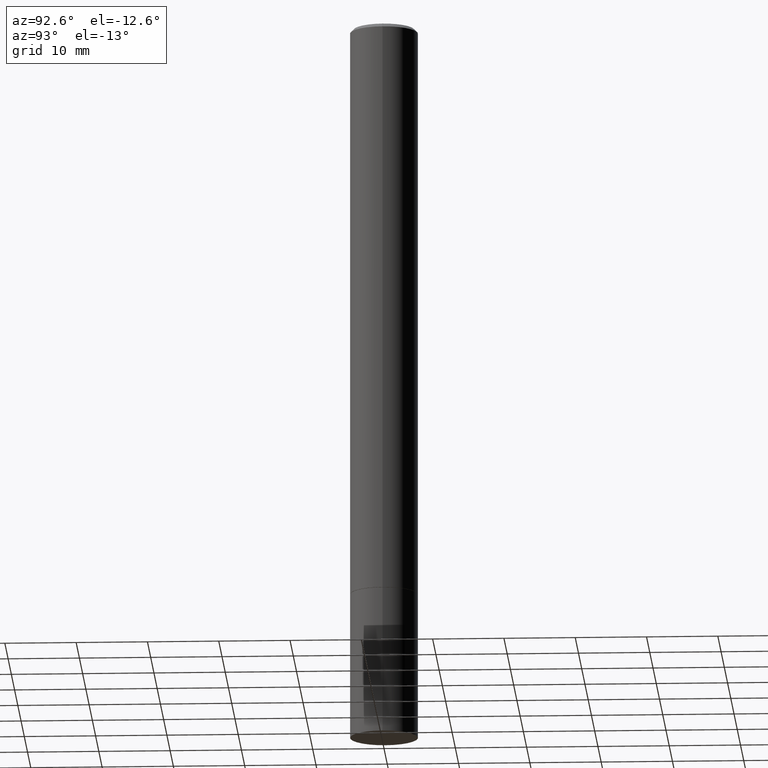
[diagram: clean part render]
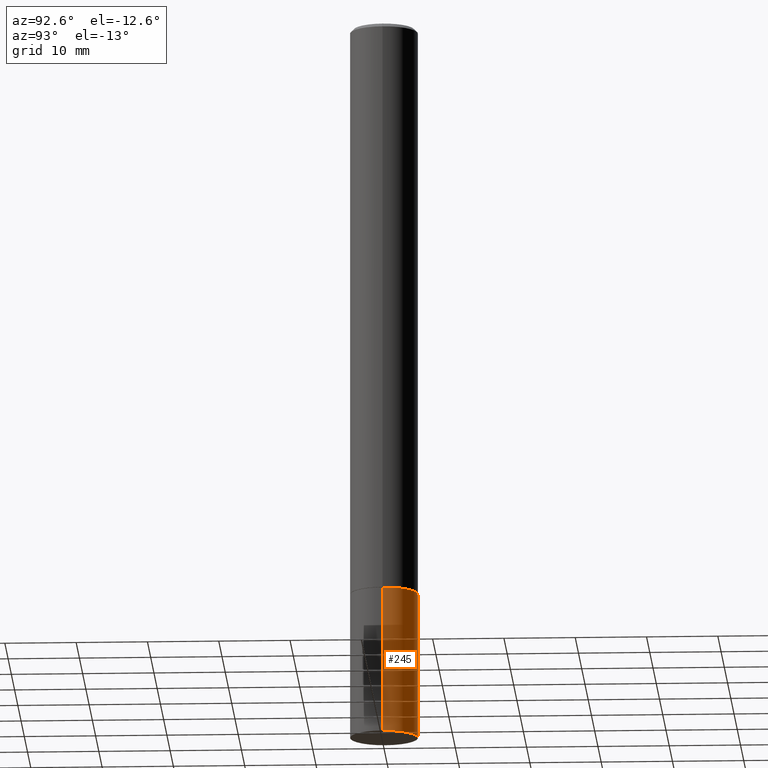
[diagram: same view with one face highlighted and labeled with its STEP entity id]
A machine part, auxiliary view. The second image highlights one B-rep face of the part: STEP entity #245.
In plain terms, the highlighted cylindrical surface (edge-blend (fillet) strip) has radius 4.7625 mm, axis along (-0, 0, 1).
Its self-contained STEP definition (entity closure, byte-faithful):
#4 = VERTEX_POINT ( 'NONE', #55 ) ;
#8 = EDGE_CURVE ( 'NONE', #230, #284, #127, .T. ) ;
#27 = CARTESIAN_POINT ( 'NONE',  ( 0.1875000000000000278, -1.244713097297580796E-14, -3.189999999999999503 ) ) ;
#35 = DIRECTION ( 'NONE',  ( -2.445468806185136877E-29, 3.491481338843145188E-15, 1.000000000000000000 ) ) ;
#38 = ORIENTED_EDGE ( 'NONE', *, *, #287, .T. ) ;
#40 = CARTESIAN_POINT ( 'NONE',  ( 0.1875000000000000278, -1.527523085743875734E-14, -4.000000000000000000 ) ) ;
#52 = LINE ( 'NONE', #103, #173 ) ;
#54 = EDGE_CURVE ( 'NONE', #230, #249, #115, .T. ) ;
#55 = CARTESIAN_POINT ( 'NONE',  ( -0.1875000000000000278, -1.121960778359091979E-14, -3.189999999999999503 ) ) ;
#61 = EDGE_LOOP ( 'NONE', ( #328, #38, #162, #337 ) ) ;
#63 = VECTOR ( 'NONE', #35, 39.37007874015748143 ) ;
#79 = CARTESIAN_POINT ( 'NONE',  ( 0.1875000000000000278, -1.309305502066175008E-15, 9.142831454617381013E-30 ) ) ;
#103 = CARTESIAN_POINT ( 'NONE',  ( -0.1875000000000000278, 1.332267629550188046E-15, -9.223003294227947991E-30 ) ) ;
#115 = CIRCLE ( 'NONE', #195, 0.1875000000000000278 ) ;
#127 = LINE ( 'NONE', #79, #63 ) ;
#138 = DIRECTION ( 'NONE',  ( 1.000000000000000000, -6.982962677686261189E-15, 0.000000000000000000 ) ) ;
#142 = CIRCLE ( 'NONE', #214, 0.1875000000000000278 ) ;
#143 = CARTESIAN_POINT ( 'NONE',  ( 9.781875224740546387E-29, -1.396592535537258233E-14, -4.000000000000000000 ) ) ;
#162 = ORIENTED_EDGE ( 'NONE', *, *, #242, .F. ) ;
#173 = VECTOR ( 'NONE', #221, 39.37007874015748143 ) ;
#195 = AXIS2_PLACEMENT_3D ( 'NONE', #143, #265, #235 ) ;
#214 = AXIS2_PLACEMENT_3D ( 'NONE', #233, #350, #138 ) ;
#221 = DIRECTION ( 'NONE',  ( -2.445468806185136877E-29, 3.491481338843145188E-15, 1.000000000000000000 ) ) ;
#230 = VERTEX_POINT ( 'NONE', #40 ) ;
#233 = CARTESIAN_POINT ( 'NONE',  ( 7.801045491730584668E-29, -1.113782547090963453E-14, -3.189999999999999503 ) ) ;
#235 = DIRECTION ( 'NONE',  ( 1.000000000000000000, -6.982962677686261189E-15, 0.000000000000000000 ) ) ;
#242 = EDGE_CURVE ( 'NONE', #284, #4, #142, .T. ) ;
#244 = DIRECTION ( 'NONE',  ( -2.445468806185136597E-29, 3.491481338843145583E-15, 1.000000000000000000 ) ) ;
#245 = ADVANCED_FACE ( 'NONE', ( #320 ), #289, .T. ) ;
#248 = CARTESIAN_POINT ( 'NONE',  ( 0.000000000000000000, 0.000000000000000000, 0.000000000000000000 ) ) ;
#249 = VERTEX_POINT ( 'NONE', #335 ) ;
#265 = DIRECTION ( 'NONE',  ( -2.445468806185136597E-29, 3.491481338843145583E-15, 1.000000000000000000 ) ) ;
#284 = VERTEX_POINT ( 'NONE', #27 ) ;
#287 = EDGE_CURVE ( 'NONE', #249, #4, #52, .T. ) ;
#289 = CYLINDRICAL_SURFACE ( 'NONE', #295, 0.1875000000000000278 ) ;
#295 = AXIS2_PLACEMENT_3D ( 'NONE', #248, #244, #339 ) ;
#320 = FACE_OUTER_BOUND ( 'NONE', #61, .T. ) ;
#328 = ORIENTED_EDGE ( 'NONE', *, *, #54, .T. ) ;
#335 = CARTESIAN_POINT ( 'NONE',  ( -0.1875000000000000278, -1.121960778359091979E-14, -4.000000000000000000 ) ) ;
#337 = ORIENTED_EDGE ( 'NONE', *, *, #8, .F. ) ;
#339 = DIRECTION ( 'NONE',  ( 1.000000000000000000, -6.982962677686265922E-15, 4.876176775795935793E-29 ) ) ;
#350 = DIRECTION ( 'NONE',  ( -2.445468806185136597E-29, 3.491481338843145583E-15, 1.000000000000000000 ) ) ;